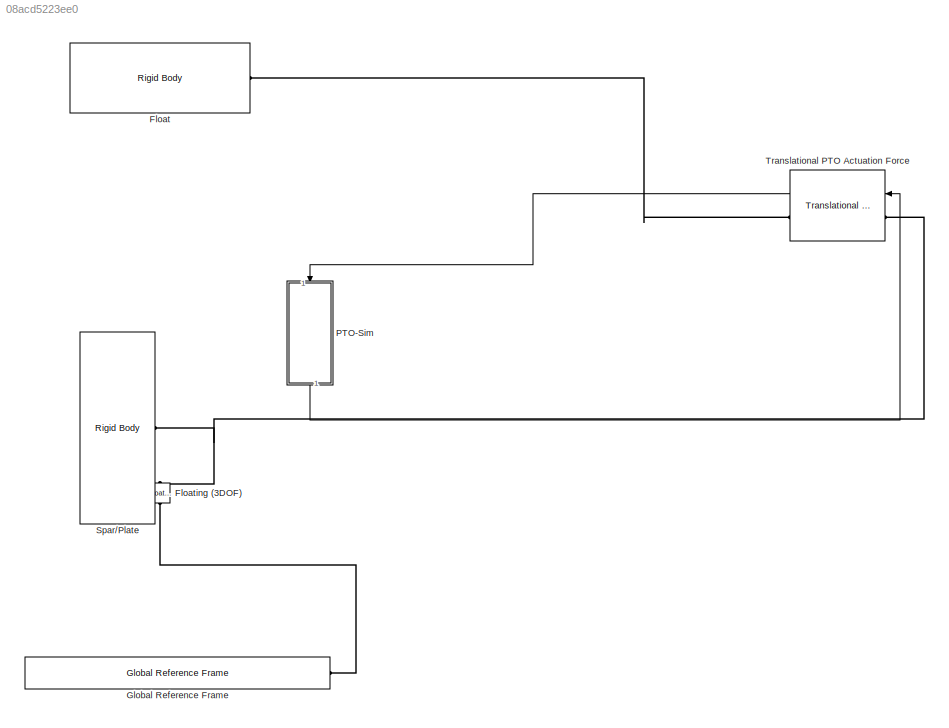
MODEL slx_08acd5223ee0
KIND model
CONFIG AbsTol = auto
CONFIG EnableMultiTasking = on
CONFIG FixedStep = 0.1
CONFIG MaxStep = 0.1
CONFIG MinStep = auto
CONFIG RelTol = 1e-3
CONFIG SampleTimeConstraint = Unconstrained
CONFIG Solver = ode4
CONFIG SolverName = ode4
CONFIG StartTime = 0
CONFIG StopTime = 400
BLOCK [Reference] Float  REF=WECSim_Lib/Body Elements/Rigid Body
  AttributesFormatString = %<body>
  Ports = [0, 0, 0, 0, 0, 0, 1]
  SourceBlock = WECSim_Lib/Body Elements/Rigid Body
  SourceProductName = WEC-Sim
  SourceType = Rigid Body
BLOCK [Reference] Floating (3DOF)  REF=WECSim_Lib/Constraints/Floating (3DOF)
  AttributesFormatString = %<constraint>
  Ports = [0, 0, 0, 0, 0, 1, 1]
  SourceBlock = WECSim_Lib/Constraints/Floating (3DOF)
  SourceProductName = WEC-Sim
  SourceType = Constraints
BLOCK [Reference] Global Reference Frame  REF=WECSim_Lib/Frames/Global Reference Frame
  Ports = [0, 0, 0, 0, 0, 0, 1]
  SourceBlock = WECSim_Lib/Frames/Global Reference Frame
  SourceProductName = WEC-Sim
  SourceType = Frames
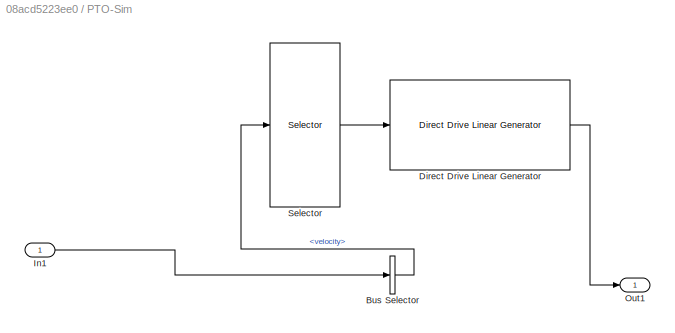
BLOCK [SubSystem] PTO-Sim
  Ports = [1, 1]
  RequestExecContextInheritance = off
BLOCK [BusSelector] PTO-Sim/Bus Selector
  OutputAsBus = off
  OutputSignals = velocity
  Ports = [1, 1]
BLOCK [Reference] PTO-Sim/Direct Drive Linear Generator  REF=PTOSim_Lib/Generator/Direct Drive Linear
Generator
  Ports = [1, 1]
  SourceBlock = PTOSim_Lib/Generator/Direct Drive Linear\nGenerator
  SourceProductName = PTO-Sim
BLOCK [Inport] PTO-Sim/In1
  IconDisplay = Port number
BLOCK [Outport] PTO-Sim/Out1
  IconDisplay = Port number
BLOCK [Selector] PTO-Sim/Selector
  IndexOptions = Index vector (dialog)
  Indices = 3
  InputPortWidth = 6
  OutputSizes = 1
  Ports = [1, 1]
BLOCK [Reference] Spar//Plate  REF=WECSim_Lib/Body Elements/Rigid Body
  AttributesFormatString = %<body>
  Ports = [0, 0, 0, 0, 0, 0, 1]
  SourceBlock = WECSim_Lib/Body Elements/Rigid Body
  SourceProductName = WEC-Sim
  SourceType = Rigid Body
BLOCK [Reference] Translational PTO Actuation Force  REF=WECSim_Lib/PTOs/Translational PTO
Actuation Force
  AttributesFormatString = %<pto>
  Ports = [1, 1, 0, 0, 0, 1, 1]
  SourceBlock = WECSim_Lib/PTOs/Translational PTO\nActuation Force
  SourceProductName = WEC-Sim
  SourceType = PTO
LINE PTO-Sim/Bus Selector:1 -> PTO-Sim/Selector:1
LINE PTO-Sim/Direct Drive Linear Generator:1 -> PTO-Sim/Out1:1
LINE PTO-Sim/In1:1 -> PTO-Sim/Bus Selector:1
LINE PTO-Sim/Selector:1 -> PTO-Sim/Direct Drive Linear Generator:1
LINE PTO-Sim:1 -> Translational PTO Actuation Force:1
LINE Translational PTO Actuation Force:1 -> PTO-Sim:1
PLINE Float:RConn1 -- Translational PTO Actuation Force:RConn1
PLINE Floating (3DOF):LConn1 -- Global Reference Frame:RConn1
PNET net1: Floating (3DOF):RConn1 -- Spar//Plate:RConn1 -- Translational PTO Actuation Force:LConn1
note: PNET lines group multi-terminal physical nets as a canonical sorted terminal list (undirected conserving connections); 2-terminal nets keep the pairwise PLINE form
